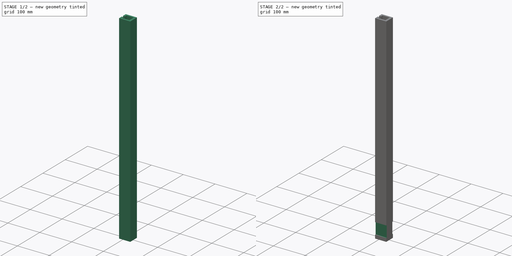
[diagram: build sequence overview — one tinted view per stage of 2, left to right]
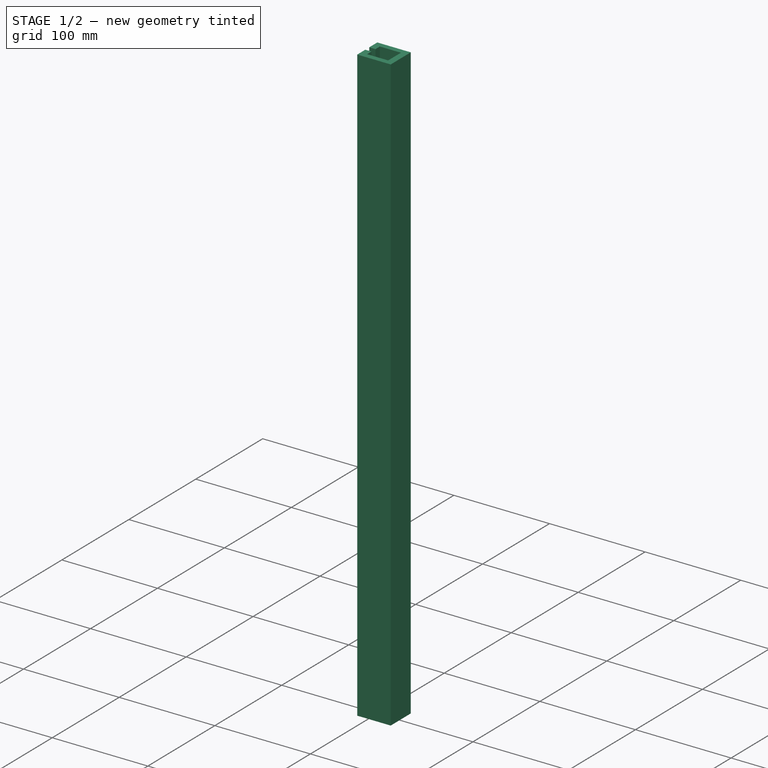
[diagram: stage 1 of 2 — iso view after this stage's code; geometry added in this stage tinted green]
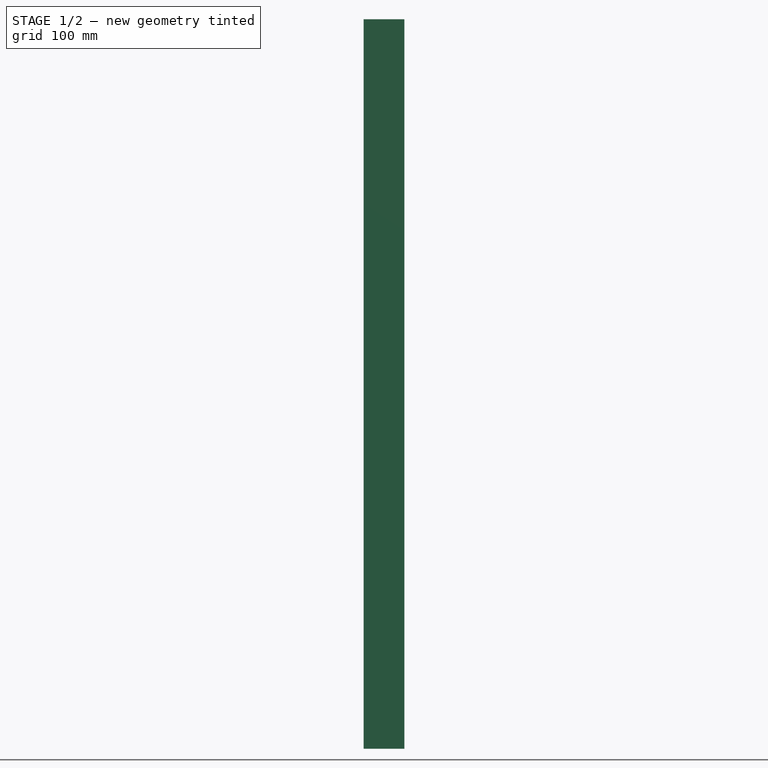
[diagram: stage 1 of 2 — front view after this stage's code; geometry added in this stage tinted green]
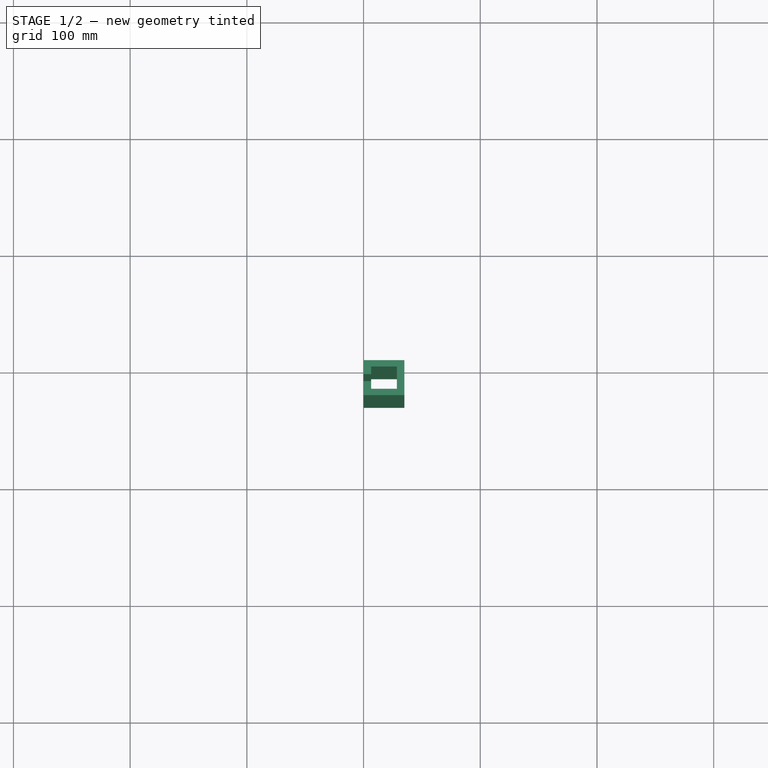
[diagram: stage 1 of 2 — top view after this stage's code; geometry added in this stage tinted green]
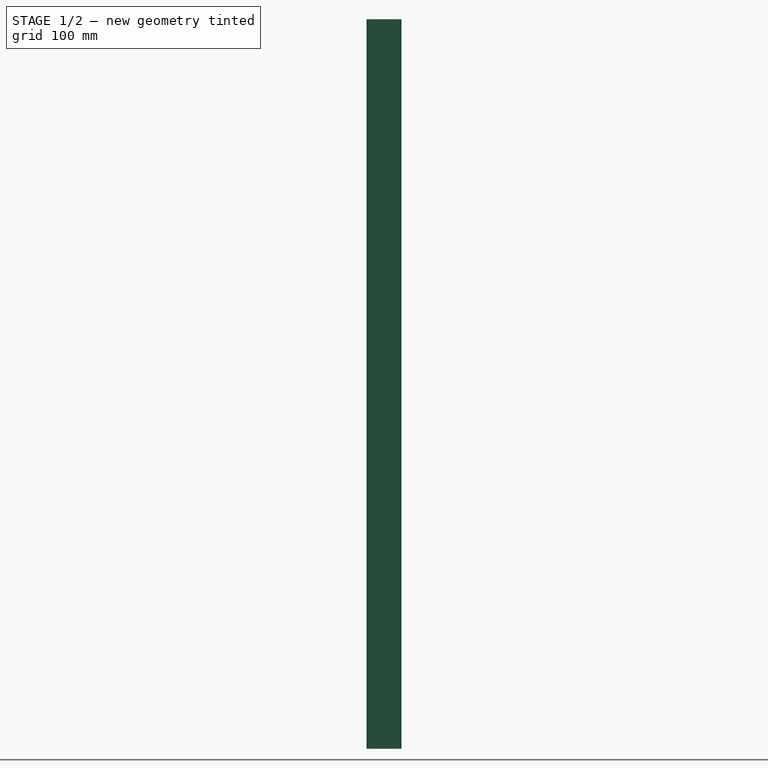
[diagram: stage 1 of 2 — right view after this stage's code; geometry added in this stage tinted green]
FCSTD DOCUMENT  (FreeCAD 0.21R33771 (Git))
Label: wellhofer-vertical-belt-drive-cover-left
License: All rights reserved
LicenseURL: https://en.wikipedia.org/wiki/All_rights_reserved
objects: Sketcher::SketchObject×2, PartDesign::Pad×1, PartDesign::Pocket×1, PartDesign::Body×1
note: 7 computed .brp shape members not serialized (recipe doc carries the construction recipe); baked Part::Feature solids carry a one-line shape summary decoded from their .brp

FEATURE [Sketcher::SketchObject] Sketch
  FullyConstrained = true
  MapMode = 5
  Support = -> [XY_Plane]
  sketch-geometry (12):
    g0: LineSegment StartX=0 StartY=0 StartZ=0 EndX=35 EndY=0 EndZ=0
    g1: LineSegment StartX=35 StartY=0 StartZ=0 EndX=35 EndY=-30 EndZ=0
    g2: LineSegment StartX=35 StartY=-30 StartZ=0 EndX=0 EndY=-30 EndZ=0
    g3: LineSegment StartX=0 StartY=-30 StartZ=0 EndX=0 EndY=-18 EndZ=0
    g4: LineSegment StartX=0 StartY=-18 StartZ=0 EndX=6.5 EndY=-18 EndZ=0
    g5: LineSegment StartX=6.5 StartY=-18 StartZ=0 EndX=6.5 EndY=-24.5 EndZ=0
    g6: LineSegment StartX=6.5 StartY=-24.5 StartZ=0 EndX=28.5 EndY=-24.5 EndZ=0
    g7: LineSegment StartX=28.5 StartY=-24.5 StartZ=0 EndX=28.5 EndY=-5.5 EndZ=0
    g8: LineSegment StartX=28.5 StartY=-5.5 StartZ=0 EndX=6.5 EndY=-5.5 EndZ=0
    g9: LineSegment StartX=6.5 StartY=-5.5 StartZ=0 EndX=6.5 EndY=-12 EndZ=0
    g10: LineSegment StartX=6.5 StartY=-12 StartZ=0 EndX=0 EndY=-12 EndZ=0
    g11: LineSegment StartX=0 StartY=0 StartZ=0 EndX=0 EndY=-12 EndZ=0
  constraints (35):
    c: Coincident(g0,g-1)
    c: Coincident(g1,g0)
    c: Horizontal(g2)
    c: Vertical(g3)
    c: Horizontal(g4)
    c: Vertical(g5)
    c: Horizontal(g6)
    c: Coincident(g11,g0)
    c: Coincident(g11,g10)
    c: DistanceX(g8,g8) = 22
    c: DistanceX(g6,g6) = 22
    c: DistanceY(g7,g7) = 19
    c: DistanceY(g9,g9) = 6.5
    c: DistanceY(g5,g5) = 6.5
    c: DistanceY(g3,g3) = 12
    c: DistanceY(g11,g11) = 12
    c: DistanceY(g1,g1) = 30
    c: DistanceX(g2,g2) = 35
    c: DistanceX(g10,g10) = 6.5
    c: Horizontal(g10)
    c: DistanceX(g4,g4) = 6.5
    c: Coincident(g4,g3)
    c: Coincident(g3,g2)
    c: Coincident(g5,g6)
    c: Coincident(g2,g1)
    c: Vertical(g11)
    c: Vertical(g9)
    c: Vertical(g7)
    c: Vertical(g1)
    c: Horizontal(g8)
    c: Coincident(g5,g4)
    c: Coincident(g10,g9)
    c: Coincident(g9,g8)
    c: Coincident(g8,g7)
    c: Coincident(g6,g7)
FEATURE [PartDesign::Pad] Pad
  Direction = (0,0,1)
  Length = 625
  Length2 = 10
  Profile = -> Sketch
  ReferenceAxis = -> Sketch [N_Axis]
  Type = 0
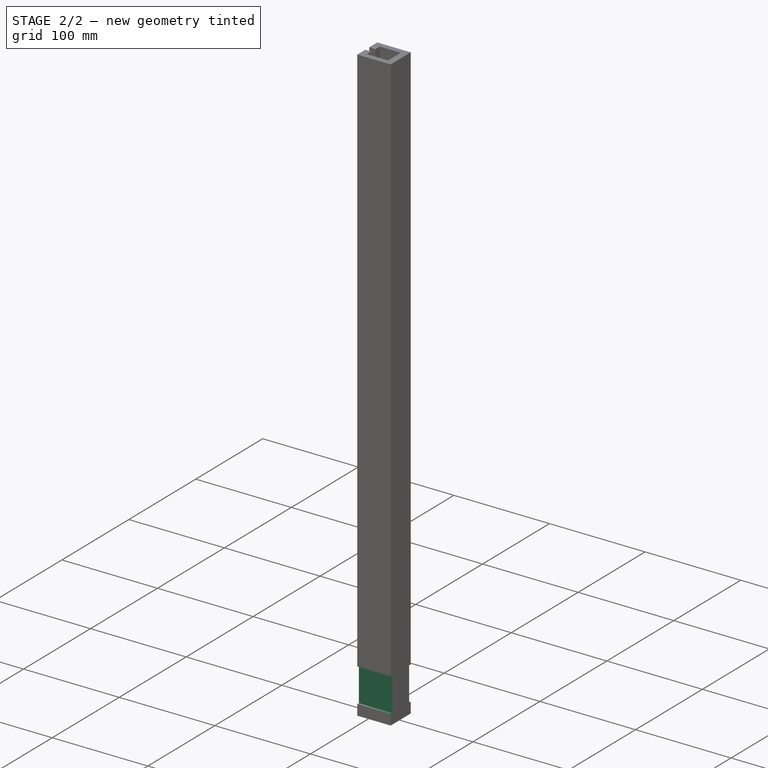
[diagram: stage 2 of 2 — iso view after this stage's code; geometry added in this stage tinted green]
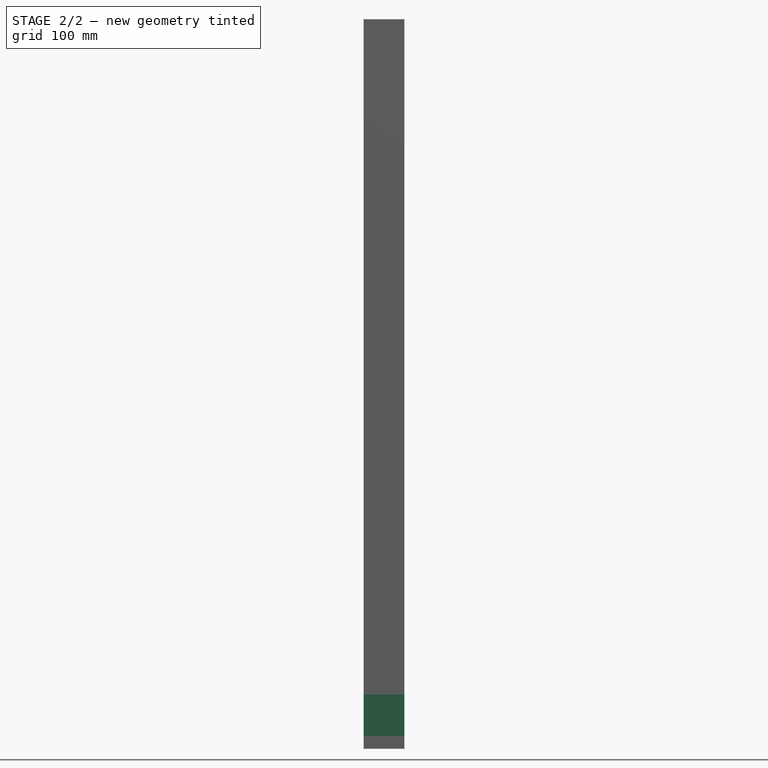
[diagram: stage 2 of 2 — front view after this stage's code; geometry added in this stage tinted green]
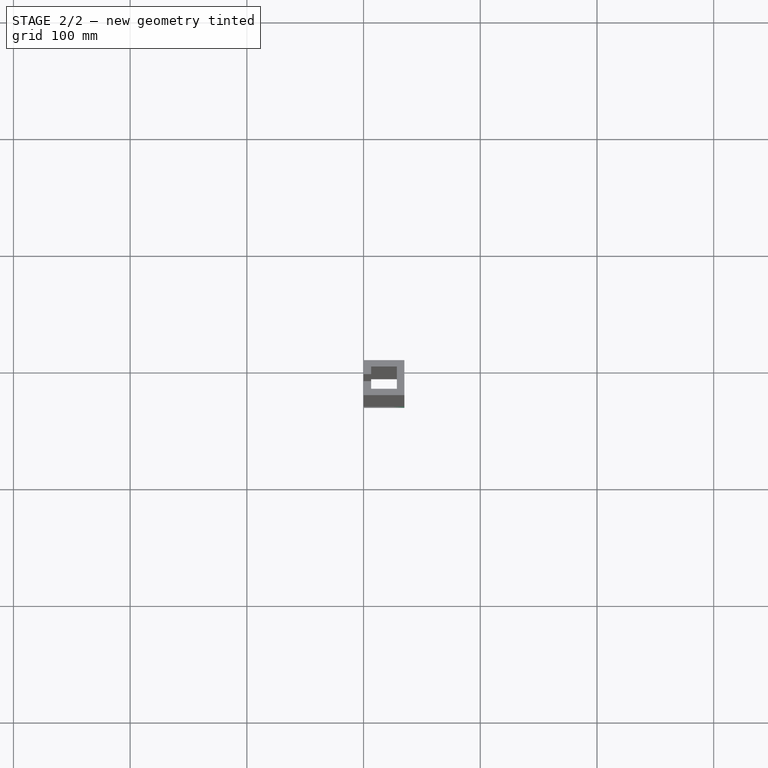
[diagram: stage 2 of 2 — top view after this stage's code; geometry added in this stage tinted green]
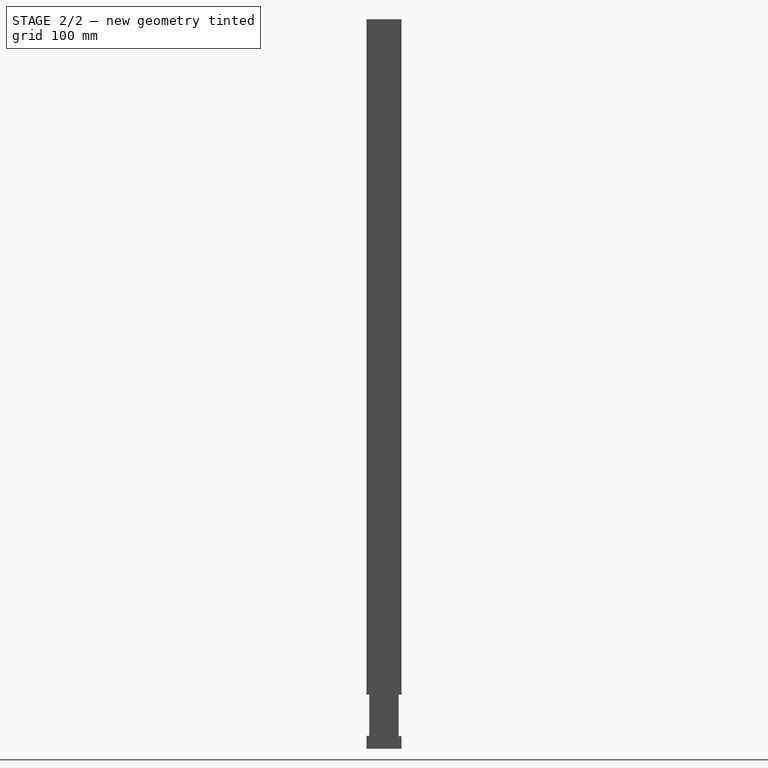
[diagram: stage 2 of 2 — right view after this stage's code; geometry added in this stage tinted green]
FEATURE [Sketcher::SketchObject] Sketch001
  FullyConstrained = false
  MapMode = 5
  Placement = pos=(0,0,0) rot=(0.57735,-0.57735,-0.57735;2.0944rad)
  sketch-geometry (8):
    g0: LineSegment StartX=27.6005 StartY=46.5078 StartZ=0 EndX=30.1005 EndY=46.5078 EndZ=0
    g1: LineSegment StartX=30.1005 StartY=46.5078 StartZ=0 EndX=30.1005 EndY=11.0078 EndZ=0
    g2: LineSegment StartX=30.1005 StartY=11.0078 StartZ=0 EndX=27.6005 EndY=11.0078 EndZ=0
    g3: LineSegment StartX=27.6005 StartY=11.0078 StartZ=0 EndX=27.6005 EndY=46.5078 EndZ=0
    g4: LineSegment StartX=-0.0435588 StartY=46.311 StartZ=0 EndX=2.45644 EndY=46.311 EndZ=0
    g5: LineSegment StartX=2.45644 StartY=46.311 StartZ=0 EndX=2.45644 EndY=10.811 EndZ=0
    g6: LineSegment StartX=2.45644 StartY=10.811 StartZ=0 EndX=-0.0435588 EndY=10.811 EndZ=0
    g7: LineSegment StartX=-0.0435588 StartY=10.811 StartZ=0 EndX=-0.0435588 EndY=46.311 EndZ=0
  constraints (20):
    c: Coincident(g0,g1)
    c: Coincident(g1,g2)
    c: Coincident(g2,g3)
    c: Coincident(g3,g0)
    c: Horizontal(g0)
    c: Horizontal(g2)
    c: Vertical(g1)
    c: Vertical(g3)
    c: Coincident(g4,g5)
    c: Coincident(g5,g6)
    c: Coincident(g6,g7)
    c: Coincident(g7,g4)
    c: Horizontal(g4)
    c: Horizontal(g6)
    c: Vertical(g5)
    c: Vertical(g7)
    c: DistanceX(g0,g0) = 2.5
    c: DistanceX(g4,g4) = 2.5
    c: DistanceY(g1,g1) = 35.5
    c: DistanceY(g7,g7) = 35.5
FEATURE [PartDesign::Pocket] Pocket
  BaseFeature = -> Pad
  Direction = (1,0,0)
  Length = 35
  Length2 = 5
  Profile = -> Sketch001
  ReferenceAxis = -> Sketch001 [N_Axis]
  Type = 0
FEATURE [PartDesign::Body] Body
  Group = -> [Sketch,Pad,Sketch001,Pocket]
  Origin = -> Origin
  Placement = pos=(0,0,0) rot=(0,0,1;1.5708rad)
  Tip = -> Pocket
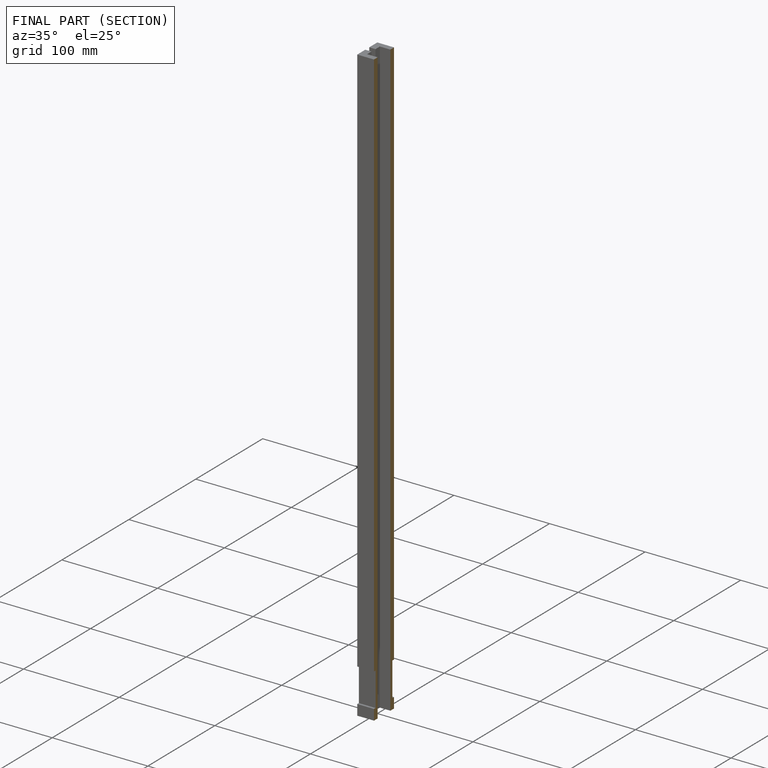
[diagram: finished part — half-section view (interior)]
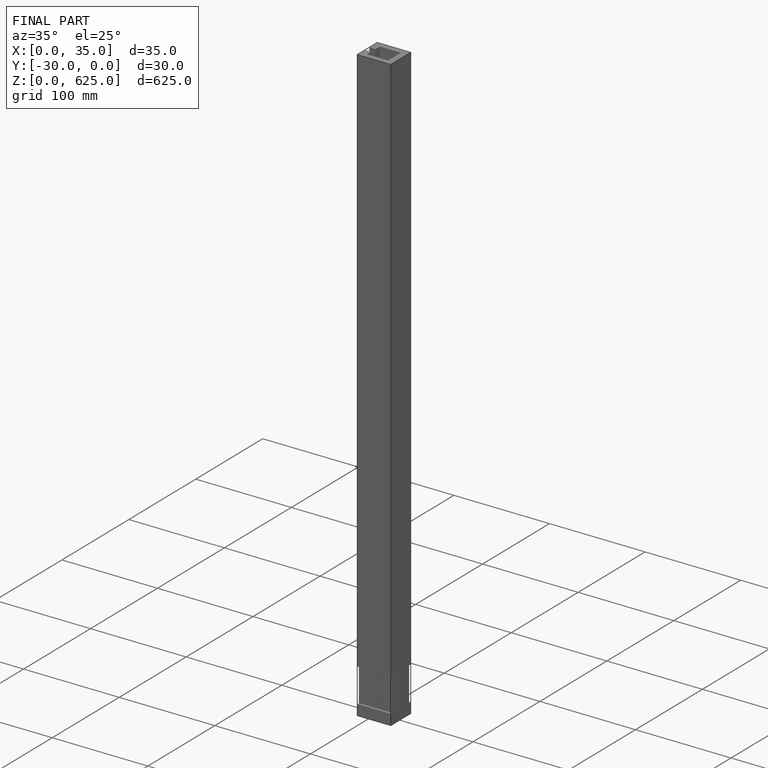
[diagram: finished part — iso view with bounding-box wireframe]
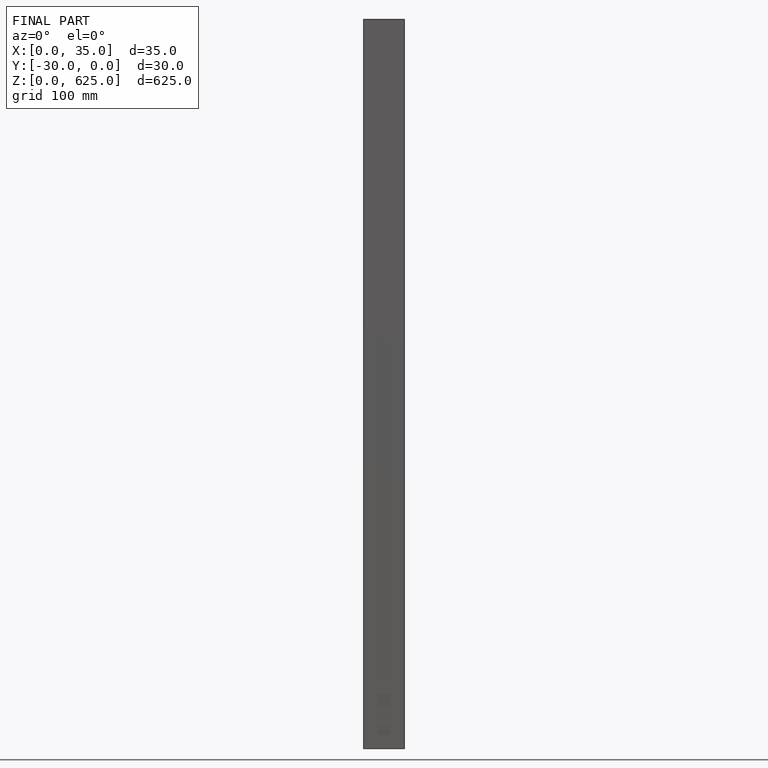
[diagram: finished part — front view with bounding-box wireframe]
